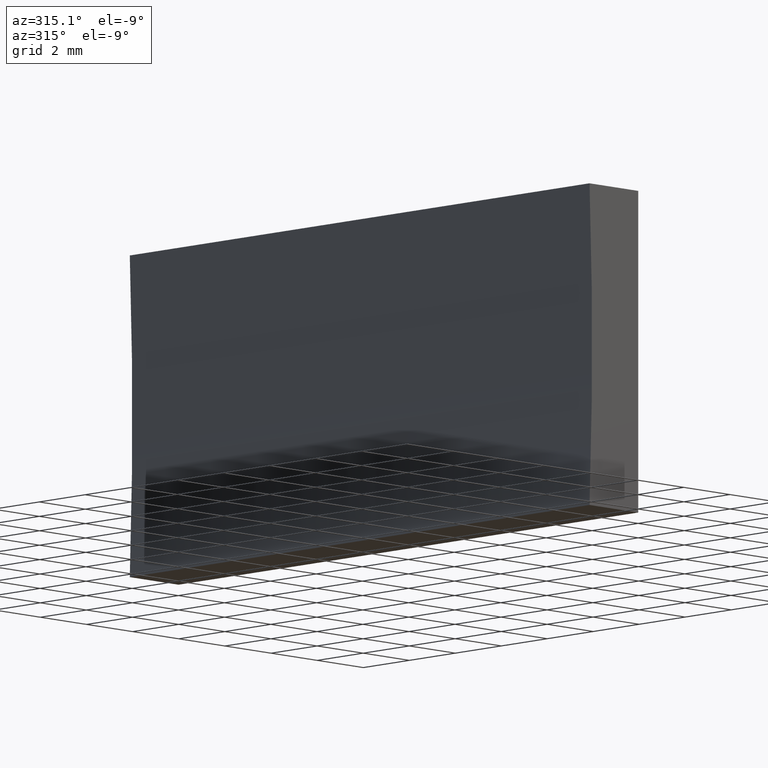
[diagram: clean part render]
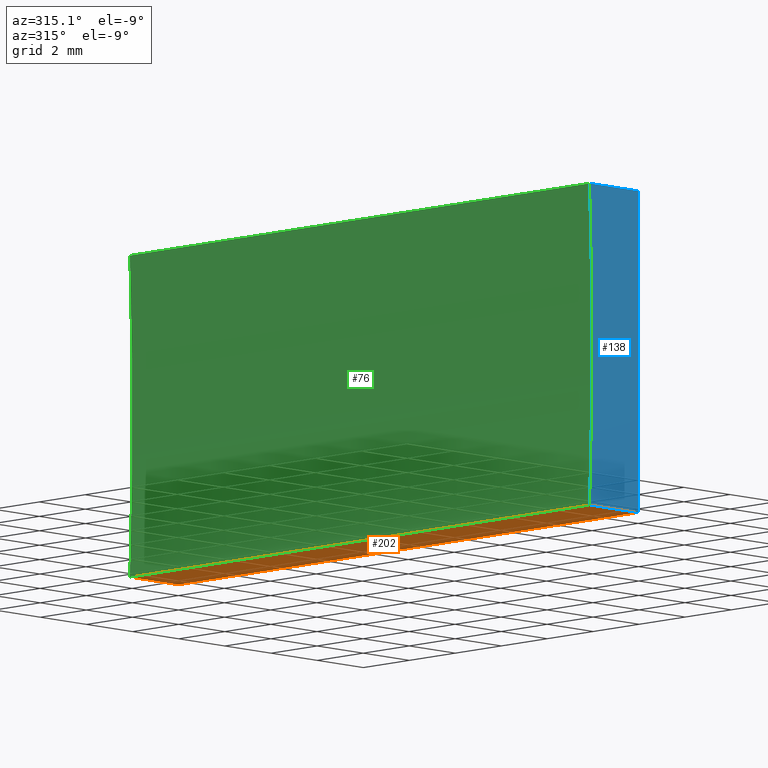
[diagram: same view with three faces highlighted in distinct colors, each labeled with its STEP entity id]
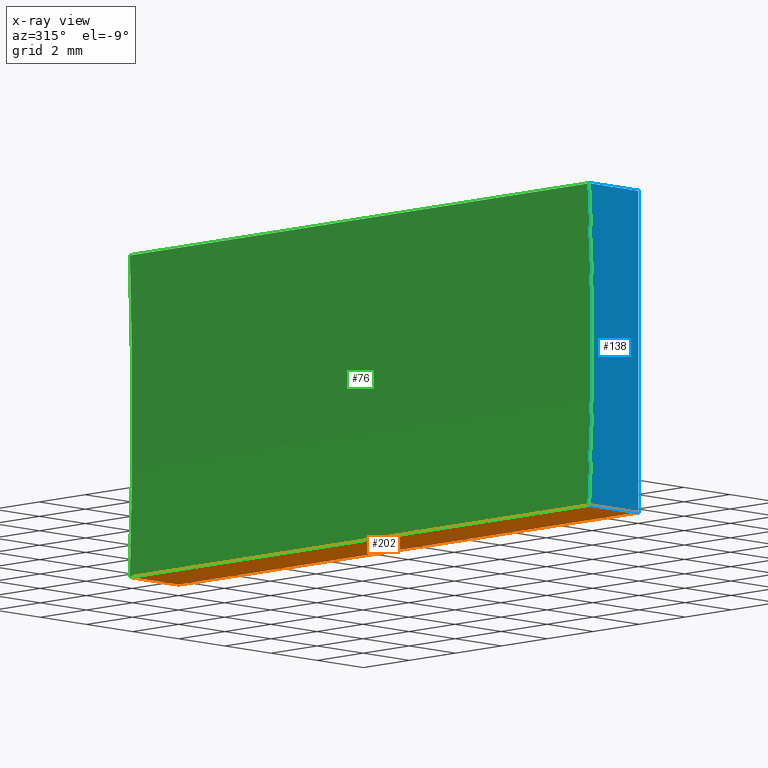
[diagram: x-ray of the same camera — body ghosted, the three highlighted faces saturated]
A machine part, auxiliary view with three faces highlighted in distinct colors.
The next image is the same camera in x-ray (body ghosted, the three faces saturated) — at least one of them is partly hidden behind the body in this view.
Their STEP definitions:

[orange] entity #202 — the highlighted planar face has unit normal (-0, 0, 1).
#4 = ORIENTED_EDGE ( 'NONE', *, *, #6, .T. ) ;
#6 = EDGE_CURVE ( 'NONE', #122, #187, #107, .T. ) ;
#18 = DIRECTION ( 'NONE',  ( -1.000000000000000000, 0.0000000000000000000, -8.224915575553600800E-016 ) ) ;
#32 = CARTESIAN_POINT ( 'NONE',  ( 0.0000000000000000000, 20.00000000000000000, 0.0000000000000000000 ) ) ;
#38 = CARTESIAN_POINT ( 'NONE',  ( 0.0000000000000000000, 0.0000000000000000000, 0.0000000000000000000 ) ) ;
#51 = CARTESIAN_POINT ( 'NONE',  ( -2.109107941645996100, 20.00000000000000000, -1.387778780781445700E-014 ) ) ;
#62 = VERTEX_POINT ( 'NONE', #51 ) ;
#67 = VECTOR ( 'NONE', #18, 1000.000000000000000 ) ;
#68 = ORIENTED_EDGE ( 'NONE', *, *, #69, .T. ) ;
#69 = EDGE_CURVE ( 'NONE', #142, #122, #145, .T. ) ;
#70 = CARTESIAN_POINT ( 'NONE',  ( 0.0000000000000000000, 20.00000000000000000, 0.0000000000000000000 ) ) ;
#72 = CARTESIAN_POINT ( 'NONE',  ( 0.0000000000000000000, 20.00000000000000000, 0.0000000000000000000 ) ) ;
#81 = LINE ( 'NONE', #70, #67 ) ;
#83 = PLANE ( 'NONE',  #99 ) ;
#88 = CARTESIAN_POINT ( 'NONE',  ( 0.0000000000000000000, 20.00000000000000000, 0.0000000000000000000 ) ) ;
#90 = ORIENTED_EDGE ( 'NONE', *, *, #177, .F. ) ;
#97 = LINE ( 'NONE', #171, #102 ) ;
#99 = AXIS2_PLACEMENT_3D ( 'NONE', #72, #133, #166 ) ;
#100 = CARTESIAN_POINT ( 'NONE',  ( -2.109107941645996100, 0.0000000000000000000, -1.387778780781445700E-014 ) ) ;
#102 = VECTOR ( 'NONE', #118, 1000.000000000000000 ) ;
#107 = LINE ( 'NONE', #194, #189 ) ;
#111 = EDGE_CURVE ( 'NONE', #62, #187, #97, .T. ) ;
#115 = ORIENTED_EDGE ( 'NONE', *, *, #111, .F. ) ;
#118 = DIRECTION ( 'NONE',  ( -0.0000000000000000000, -1.000000000000000000, -0.0000000000000000000 ) ) ;
#122 = VERTEX_POINT ( 'NONE', #38 ) ;
#127 = VECTOR ( 'NONE', #200, 1000.000000000000000 ) ;
#133 = DIRECTION ( 'NONE',  ( -8.224915575553600800E-016, 0.0000000000000000000, 1.000000000000000000 ) ) ;
#142 = VERTEX_POINT ( 'NONE', #88 ) ;
#145 = LINE ( 'NONE', #32, #127 ) ;
#163 = EDGE_LOOP ( 'NONE', ( #4, #115, #90, #68 ) ) ;
#166 = DIRECTION ( 'NONE',  ( 1.000000000000000000, 0.0000000000000000000, 8.224915575553600800E-016 ) ) ;
#171 = CARTESIAN_POINT ( 'NONE',  ( -2.109107941645996100, 20.00000000000000000, -1.387778780781445700E-014 ) ) ;
#177 = EDGE_CURVE ( 'NONE', #142, #62, #81, .T. ) ;
#181 = DIRECTION ( 'NONE',  ( -1.000000000000000000, 0.0000000000000000000, -8.224915575553600800E-016 ) ) ;
#187 = VERTEX_POINT ( 'NONE', #100 ) ;
#189 = VECTOR ( 'NONE', #181, 1000.000000000000000 ) ;
#194 = CARTESIAN_POINT ( 'NONE',  ( 0.0000000000000000000, 0.0000000000000000000, 0.0000000000000000000 ) ) ;
#200 = DIRECTION ( 'NONE',  ( -0.0000000000000000000, -1.000000000000000000, -0.0000000000000000000 ) ) ;
#202 = ADVANCED_FACE ( 'NONE', ( #204 ), #83, .F. ) ;
#204 = FACE_OUTER_BOUND ( 'NONE', #163, .T. ) ;

[blue] entity #138 — the highlighted planar face has unit normal (0, 1, 0).
#2 = VECTOR ( 'NONE', #59, 1000.000000000000000 ) ;
#3 = VERTEX_POINT ( 'NONE', #82 ) ;
#6 = EDGE_CURVE ( 'NONE', #122, #187, #107, .T. ) ;
#11 = DIRECTION ( 'NONE',  ( -0.0000000000000000000, -1.000000000000000000, -0.0000000000000000000 ) ) ;
#14 = ORIENTED_EDGE ( 'NONE', *, *, #120, .F. ) ;
#28 = VECTOR ( 'NONE', #175, 1000.000000000000000 ) ;
#30 = PLANE ( 'NONE',  #46 ) ;
#33 = EDGE_CURVE ( 'NONE', #3, #122, #136, .T. ) ;
#34 = CARTESIAN_POINT ( 'NONE',  ( -116.6200000000000000, 0.0000000000000000000, 5.000000000000013300 ) ) ;
#38 = CARTESIAN_POINT ( 'NONE',  ( 0.0000000000000000000, 0.0000000000000000000, 0.0000000000000000000 ) ) ;
#39 = FACE_OUTER_BOUND ( 'NONE', #182, .T. ) ;
#44 = EDGE_CURVE ( 'NONE', #187, #123, #192, .T. ) ;
#46 = AXIS2_PLACEMENT_3D ( 'NONE', #150, #55, #169 ) ;
#49 = ORIENTED_EDGE ( 'NONE', *, *, #33, .F. ) ;
#55 = DIRECTION ( 'NONE',  ( 0.0000000000000000000, 1.000000000000000000, 0.0000000000000000000 ) ) ;
#57 = ORIENTED_EDGE ( 'NONE', *, *, #6, .F. ) ;
#59 = DIRECTION ( 'NONE',  ( 1.000000000000000000, -0.0000000000000000000, -8.224915575553605800E-016 ) ) ;
#82 = CARTESIAN_POINT ( 'NONE',  ( 6.123233995736766300E-016, 0.0000000000000000000, 10.00000000000000000 ) ) ;
#100 = CARTESIAN_POINT ( 'NONE',  ( -2.109107941645996100, 0.0000000000000000000, -1.387778780781445700E-014 ) ) ;
#103 = ORIENTED_EDGE ( 'NONE', *, *, #44, .F. ) ;
#105 = CARTESIAN_POINT ( 'NONE',  ( -2.109107941646009900, 0.0000000000000000000, 10.00000000000000200 ) ) ;
#107 = LINE ( 'NONE', #194, #189 ) ;
#110 = DIRECTION ( 'NONE',  ( 0.0000000000000000000, 0.0000000000000000000, 1.000000000000000000 ) ) ;
#120 = EDGE_CURVE ( 'NONE', #123, #3, #144, .T. ) ;
#122 = VERTEX_POINT ( 'NONE', #38 ) ;
#123 = VERTEX_POINT ( 'NONE', #105 ) ;
#129 = AXIS2_PLACEMENT_3D ( 'NONE', #34, #11, #110 ) ;
#136 = LINE ( 'NONE', #176, #28 ) ;
#138 = ADVANCED_FACE ( 'NONE', ( #39 ), #30, .F. ) ;
#144 = LINE ( 'NONE', #186, #2 ) ;
#150 = CARTESIAN_POINT ( 'NONE',  ( -116.6200000000000000, 0.0000000000000000000, 5.000000000000013300 ) ) ;
#169 = DIRECTION ( 'NONE',  ( 0.0000000000000000000, -0.0000000000000000000, 1.000000000000000000 ) ) ;
#175 = DIRECTION ( 'NONE',  ( -6.123233995736766000E-017, -0.0000000000000000000, -1.000000000000000000 ) ) ;
#176 = CARTESIAN_POINT ( 'NONE',  ( 0.0000000000000000000, 0.0000000000000000000, 0.0000000000000000000 ) ) ;
#181 = DIRECTION ( 'NONE',  ( -1.000000000000000000, 0.0000000000000000000, -8.224915575553600800E-016 ) ) ;
#182 = EDGE_LOOP ( 'NONE', ( #57, #49, #14, #103 ) ) ;
#186 = CARTESIAN_POINT ( 'NONE',  ( 6.123233995736766300E-016, 0.0000000000000000000, 10.00000000000000000 ) ) ;
#187 = VERTEX_POINT ( 'NONE', #100 ) ;
#189 = VECTOR ( 'NONE', #181, 1000.000000000000000 ) ;
#192 = CIRCLE ( 'NONE', #129, 114.6200000000000000 ) ;
#194 = CARTESIAN_POINT ( 'NONE',  ( 0.0000000000000000000, 0.0000000000000000000, 0.0000000000000000000 ) ) ;

[green] entity #76 — the highlighted cylindrical surface (partial cylindrical patch) has radius 114.62 mm, axis along (-0, -1, -0).
#1 = EDGE_CURVE ( 'NONE', #86, #123, #80, .T. ) ;
#11 = DIRECTION ( 'NONE',  ( -0.0000000000000000000, -1.000000000000000000, -0.0000000000000000000 ) ) ;
#19 = FACE_OUTER_BOUND ( 'NONE', #20, .T. ) ;
#20 = EDGE_LOOP ( 'NONE', ( #93, #119, #184, #201 ) ) ;
#21 = EDGE_CURVE ( 'NONE', #62, #86, #25, .T. ) ;
#25 = CIRCLE ( 'NONE', #137, 114.6200000000000000 ) ;
#34 = CARTESIAN_POINT ( 'NONE',  ( -116.6200000000000000, 0.0000000000000000000, 5.000000000000013300 ) ) ;
#44 = EDGE_CURVE ( 'NONE', #187, #123, #192, .T. ) ;
#47 = DIRECTION ( 'NONE',  ( 0.0000000000000000000, 0.0000000000000000000, 1.000000000000000000 ) ) ;
#51 = CARTESIAN_POINT ( 'NONE',  ( -2.109107941645996100, 20.00000000000000000, -1.387778780781445700E-014 ) ) ;
#53 = DIRECTION ( 'NONE',  ( -0.0000000000000000000, -1.000000000000000000, -0.0000000000000000000 ) ) ;
#54 = AXIS2_PLACEMENT_3D ( 'NONE', #94, #74, #79 ) ;
#58 = CYLINDRICAL_SURFACE ( 'NONE', #54, 114.6200000000000000 ) ;
#60 = CARTESIAN_POINT ( 'NONE',  ( -2.109107941646009900, 20.00000000000000000, 10.00000000000000200 ) ) ;
#62 = VERTEX_POINT ( 'NONE', #51 ) ;
#66 = CARTESIAN_POINT ( 'NONE',  ( -116.6200000000000000, 20.00000000000000000, 5.000000000000013300 ) ) ;
#74 = DIRECTION ( 'NONE',  ( -0.0000000000000000000, -1.000000000000000000, -0.0000000000000000000 ) ) ;
#76 = ADVANCED_FACE ( 'NONE', ( #19 ), #58, .F. ) ;
#79 = DIRECTION ( 'NONE',  ( 0.0000000000000000000, 0.0000000000000000000, -1.000000000000000000 ) ) ;
#80 = LINE ( 'NONE', #125, #173 ) ;
#86 = VERTEX_POINT ( 'NONE', #60 ) ;
#93 = ORIENTED_EDGE ( 'NONE', *, *, #44, .T. ) ;
#94 = CARTESIAN_POINT ( 'NONE',  ( -116.6200000000000000, 20.00000000000000000, 5.000000000000013300 ) ) ;
#97 = LINE ( 'NONE', #171, #102 ) ;
#100 = CARTESIAN_POINT ( 'NONE',  ( -2.109107941645996100, 0.0000000000000000000, -1.387778780781445700E-014 ) ) ;
#102 = VECTOR ( 'NONE', #118, 1000.000000000000000 ) ;
#105 = CARTESIAN_POINT ( 'NONE',  ( -2.109107941646009900, 0.0000000000000000000, 10.00000000000000200 ) ) ;
#110 = DIRECTION ( 'NONE',  ( 0.0000000000000000000, 0.0000000000000000000, 1.000000000000000000 ) ) ;
#111 = EDGE_CURVE ( 'NONE', #62, #187, #97, .T. ) ;
#118 = DIRECTION ( 'NONE',  ( -0.0000000000000000000, -1.000000000000000000, -0.0000000000000000000 ) ) ;
#119 = ORIENTED_EDGE ( 'NONE', *, *, #1, .F. ) ;
#123 = VERTEX_POINT ( 'NONE', #105 ) ;
#125 = CARTESIAN_POINT ( 'NONE',  ( -2.109107941646009900, 20.00000000000000000, 10.00000000000000200 ) ) ;
#129 = AXIS2_PLACEMENT_3D ( 'NONE', #34, #11, #110 ) ;
#137 = AXIS2_PLACEMENT_3D ( 'NONE', #66, #161, #47 ) ;
#161 = DIRECTION ( 'NONE',  ( -0.0000000000000000000, -1.000000000000000000, -0.0000000000000000000 ) ) ;
#171 = CARTESIAN_POINT ( 'NONE',  ( -2.109107941645996100, 20.00000000000000000, -1.387778780781445700E-014 ) ) ;
#173 = VECTOR ( 'NONE', #53, 1000.000000000000000 ) ;
#184 = ORIENTED_EDGE ( 'NONE', *, *, #21, .F. ) ;
#187 = VERTEX_POINT ( 'NONE', #100 ) ;
#192 = CIRCLE ( 'NONE', #129, 114.6200000000000000 ) ;
#201 = ORIENTED_EDGE ( 'NONE', *, *, #111, .T. ) ;